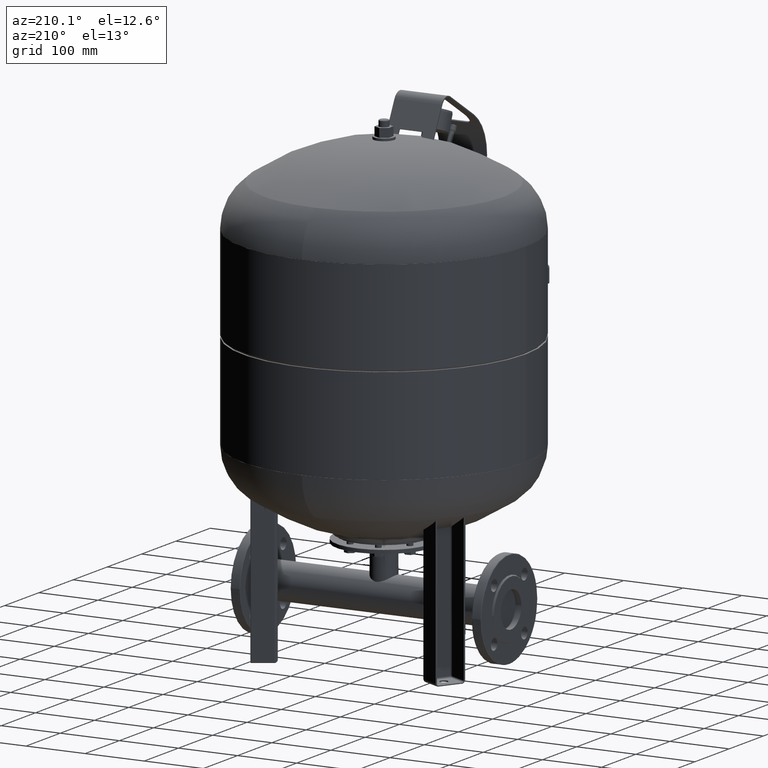
[diagram: clean part render]
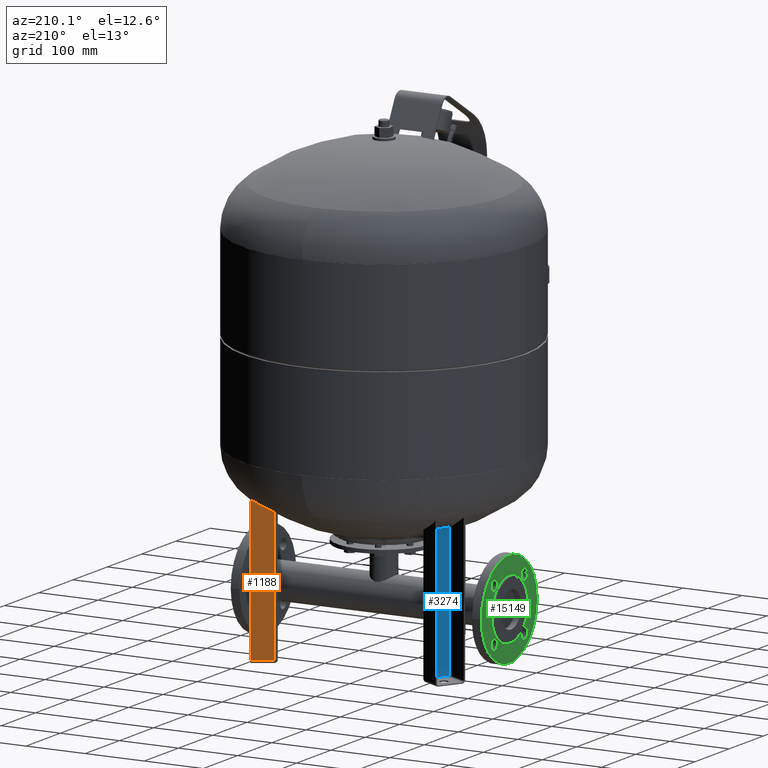
[diagram: same view with three faces highlighted in distinct colors, each labeled with its STEP entity id]
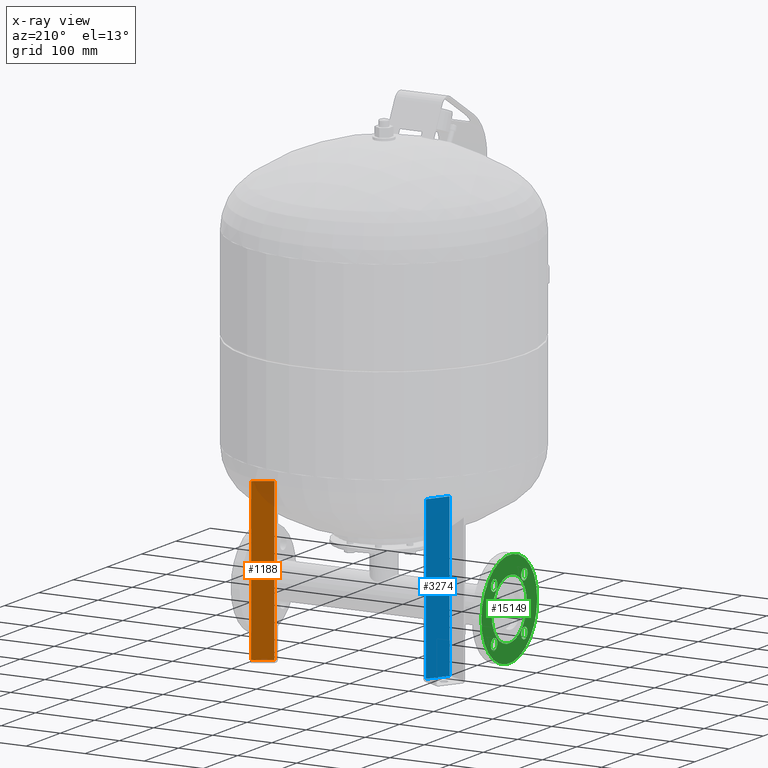
[diagram: x-ray of the same camera — body ghosted, the three highlighted faces saturated]
A machine part, auxiliary view with three faces highlighted in distinct colors.
The next image is the same camera in x-ray (body ghosted, the three faces saturated) — at least one of them is partly hidden behind the body in this view.
Their STEP definitions:

[orange] entity #1188 — the highlighted planar face has unit normal (-0.5, 0.866, 0).
#250=CARTESIAN_POINT('',(155.941941036073360,118.900635094610920,274.0));
#251=VERTEX_POINT('',#250);
#259=CARTESIAN_POINT('',(126.497077307402440,101.900635094610920,274.0));
#260=VERTEX_POINT('',#259);
#261=CARTESIAN_POINT('',(126.497077307402440,101.900635094610920,274.0));
#262=DIRECTION('',(0.866025403784439,0.500000000000000,0.0));
#263=VECTOR('',#262,34.000000000000007);
#264=LINE('',#261,#263);
#265=EDGE_CURVE('',#260,#251,#264,.T.);
#695=CARTESIAN_POINT('',(155.941941036073330,118.900635094610920,5.000000000000004));
#696=VERTEX_POINT('',#695);
#723=CARTESIAN_POINT('',(155.941941036073330,118.900635094610920,5.000000000000004));
#724=DIRECTION('',(0.0,0.0,1.0));
#725=VECTOR('',#724,269.0);
#726=LINE('',#723,#725);
#727=EDGE_CURVE('',#696,#251,#726,.T.);
#923=CARTESIAN_POINT('',(126.497077307402440,101.900635094610920,5.000000000000004));
#924=VERTEX_POINT('',#923);
#932=CARTESIAN_POINT('',(126.497077307402440,101.900635094610920,5.000000000000004));
#933=DIRECTION('',(0.866025403784438,0.500000000000000,0.0));
#934=VECTOR('',#933,33.999999999999986);
#935=LINE('',#932,#934);
#936=EDGE_CURVE('',#924,#696,#935,.T.);
#1058=CARTESIAN_POINT('',(126.497077307402440,101.900635094610920,5.000000000000004));
#1059=DIRECTION('',(0.0,0.0,1.0));
#1060=VECTOR('',#1059,269.0);
#1061=LINE('',#1058,#1060);
#1062=EDGE_CURVE('',#924,#260,#1061,.T.);
#1177=CARTESIAN_POINT('',(122.166950288480240,99.400635094610919,4.592425E-015));
#1178=DIRECTION('',(-0.500000000000000,0.866025403784439,1.836970E-016));
#1179=DIRECTION('',(-0.866025403784439,-0.500000000000000,-2.039447E-032));
#1180=AXIS2_PLACEMENT_3D('',#1177,#1178,#1179);
#1181=PLANE('',#1180);
#1182=ORIENTED_EDGE('',*,*,#727,.F.);
#1183=ORIENTED_EDGE('',*,*,#936,.F.);
#1184=ORIENTED_EDGE('',*,*,#1062,.T.);
#1185=ORIENTED_EDGE('',*,*,#265,.T.);
#1186=EDGE_LOOP('',(#1182,#1183,#1184,#1185));
#1187=FACE_OUTER_BOUND('',#1186,.T.);
#1188=ADVANCED_FACE('',(#1187),#1181,.T.);

[blue] entity #3274 — the highlighted planar face has unit normal (0.866, -0.5, -0).
#2327=CARTESIAN_POINT('',(-126.832013797941230,96.320508075688835,274.0));
#2328=VERTEX_POINT('',#2327);
#2336=CARTESIAN_POINT('',(-146.832013797941220,61.679491924311279,274.0));
#2337=VERTEX_POINT('',#2336);
#2338=CARTESIAN_POINT('',(-146.832013797941220,61.679491924311279,274.0));
#2339=DIRECTION('',(0.500000000000000,0.866025403784439,0.0));
#2340=VECTOR('',#2339,40.0);
#2341=LINE('',#2338,#2340);
#2342=EDGE_CURVE('',#2337,#2328,#2341,.T.);
#2879=CARTESIAN_POINT('',(-146.832013797941220,61.679491924311286,4.500000000000004));
#2880=VERTEX_POINT('',#2879);
#2888=CARTESIAN_POINT('',(-126.832013797941230,96.320508075688835,4.499999999999996));
#2889=VERTEX_POINT('',#2888);
#2890=CARTESIAN_POINT('',(-146.832013797941220,61.679491924311286,4.500000000000004));
#2891=DIRECTION('',(0.500000000000000,0.866025403784439,-1.776357E-016));
#2892=VECTOR('',#2891,39.999999999999993);
#2893=LINE('',#2890,#2892);
#2894=EDGE_CURVE('',#2880,#2889,#2893,.T.);
#3247=CARTESIAN_POINT('',(-126.832013797941230,96.320508075688835,4.499999999999996));
#3248=DIRECTION('',(0.0,0.0,1.0));
#3249=VECTOR('',#3248,269.500000000000000);
#3250=LINE('',#3247,#3249);
#3251=EDGE_CURVE('',#2889,#2328,#3250,.T.);
#3258=CARTESIAN_POINT('',(-125.582013797941230,98.485571585149927,1.999999999999996));
#3259=DIRECTION('',(0.866025403784439,-0.500000000000000,-5.438524E-032));
#3260=DIRECTION('',(0.500000000000000,0.866025403784439,-1.836970E-016));
#3261=AXIS2_PLACEMENT_3D('',#3258,#3259,#3260);
#3262=PLANE('',#3261);
#3263=ORIENTED_EDGE('',*,*,#2894,.F.);
#3264=CARTESIAN_POINT('',(-146.832013797941220,61.679491924311279,274.0));
#3265=DIRECTION('',(0.0,0.0,-1.0));
#3266=VECTOR('',#3265,269.500000000000000);
#3267=LINE('',#3264,#3266);
#3268=EDGE_CURVE('',#2337,#2880,#3267,.T.);
#3269=ORIENTED_EDGE('',*,*,#3268,.F.);
#3270=ORIENTED_EDGE('',*,*,#2342,.T.);
#3271=ORIENTED_EDGE('',*,*,#3251,.F.);
#3272=EDGE_LOOP('',(#3263,#3269,#3270,#3271));
#3273=FACE_OUTER_BOUND('',#3272,.T.);
#3274=ADVANCED_FACE('',(#3273),#3262,.F.);

[green] entity #15149 — the highlighted face is a freeform B-spline surface patch.
#14268=CARTESIAN_POINT('',(-212.0,-51.232050807568882,100.0));
#14269=VERTEX_POINT('',#14268);
#14278=CARTESIAN_POINT('',(-212.0,51.232050807568882,100.0));
#14279=VERTEX_POINT('',#14278);
#14280=CARTESIAN_POINT('',(-212.0,-5.510729E-016,100.0));
#14281=DIRECTION('',(1.0,0.0,0.0));
#14282=DIRECTION('',(0.0,-1.0,0.0));
#14283=AXIS2_PLACEMENT_3D('',#14280,#14281,#14282);
#14284=CIRCLE('',#14283,51.232050807568882);
#14285=EDGE_CURVE('',#14279,#14269,#14284,.T.);
#14396=CARTESIAN_POINT('',(-212.000000000000030,-53.694173824159122,144.194173824159320));
#14397=VERTEX_POINT('',#14396);
#14413=CARTESIAN_POINT('',(-212.0,-34.694173824159122,144.194173824159380));
#14414=VERTEX_POINT('',#14413);
#14421=CARTESIAN_POINT('',(-212.000000000000030,-44.194173824159122,144.194173824159320));
#14422=DIRECTION('',(-1.0,0.0,0.0));
#14423=DIRECTION('',(0.0,-1.0,0.0));
#14424=AXIS2_PLACEMENT_3D('',#14421,#14422,#14423);
#14425=CIRCLE('',#14424,9.500000000000000);
#14426=EDGE_CURVE('',#14414,#14397,#14425,.T.);
#14459=CARTESIAN_POINT('',(-212.0,-53.694173824159272,55.805826175840828));
#14460=VERTEX_POINT('',#14459);
#14476=CARTESIAN_POINT('',(-212.0,-34.694173824159272,55.805826175840892));
#14477=VERTEX_POINT('',#14476);
#14484=CARTESIAN_POINT('',(-212.0,-44.194173824159272,55.805826175840828));
#14485=DIRECTION('',(-1.0,0.0,0.0));
#14486=DIRECTION('',(0.0,-1.0,0.0));
#14487=AXIS2_PLACEMENT_3D('',#14484,#14485,#14486);
#14488=CIRCLE('',#14487,9.500000000000000);
#14489=EDGE_CURVE('',#14477,#14460,#14488,.T.);
#14522=CARTESIAN_POINT('',(-211.999999999999970,34.694173824159158,55.805826175840714));
#14523=VERTEX_POINT('',#14522);
#14539=CARTESIAN_POINT('',(-211.999999999999970,53.694173824159158,55.805826175840778));
#14540=VERTEX_POINT('',#14539);
#14547=CARTESIAN_POINT('',(-211.999999999999970,44.194173824159158,55.805826175840714));
#14548=DIRECTION('',(-1.0,0.0,0.0));
#14549=DIRECTION('',(0.0,-1.0,0.0));
#14550=AXIS2_PLACEMENT_3D('',#14547,#14548,#14549);
#14551=CIRCLE('',#14550,9.500000000000000);
#14552=EDGE_CURVE('',#14540,#14523,#14551,.T.);
#14585=CARTESIAN_POINT('',(-212.0,34.694173824159300,144.194173824159150));
#14586=VERTEX_POINT('',#14585);
#14602=CARTESIAN_POINT('',(-212.0,53.694173824159300,144.194173824159210));
#14603=VERTEX_POINT('',#14602);
#14610=CARTESIAN_POINT('',(-212.0,44.194173824159300,144.194173824159150));
#14611=DIRECTION('',(-1.0,0.0,0.0));
#14612=DIRECTION('',(0.0,-1.0,0.0));
#14613=AXIS2_PLACEMENT_3D('',#14610,#14611,#14612);
#14614=CIRCLE('',#14613,9.500000000000000);
#14615=EDGE_CURVE('',#14603,#14586,#14614,.T.);
#14675=CARTESIAN_POINT('',(-211.999999999999970,81.500000000000000,100.0));
#14676=VERTEX_POINT('',#14675);
#14693=CARTESIAN_POINT('',(-212.000000000000030,-81.500000000000000,100.0));
#14694=VERTEX_POINT('',#14693);
#14702=CARTESIAN_POINT('',(-212.0,-5.510729E-016,100.0));
#14703=DIRECTION('',(-1.0,0.0,0.0));
#14704=DIRECTION('',(0.0,1.0,0.0));
#14705=AXIS2_PLACEMENT_3D('',#14702,#14703,#14704);
#14706=CIRCLE('',#14705,81.500000000000000);
#14707=EDGE_CURVE('',#14676,#14694,#14706,.T.);
#15078=CARTESIAN_POINT('',(-212.0,-5.510729E-016,100.0));
#15079=DIRECTION('',(-1.0,0.0,0.0));
#15080=DIRECTION('',(0.0,1.0,0.0));
#15081=AXIS2_PLACEMENT_3D('',#15078,#15079,#15080);
#15082=CIRCLE('',#15081,81.500000000000000);
#15083=EDGE_CURVE('',#14694,#14676,#15082,.T.);
#15090=CARTESIAN_POINT('',(-211.999999999999970,81.500000000000000,18.500000000000000));
#15091=CARTESIAN_POINT('',(-212.0,-81.500000000000000,18.500000000000000));
#15092=CARTESIAN_POINT('',(-212.0,81.500000000000000,181.500000000000000));
#15093=CARTESIAN_POINT('',(-212.000000000000030,-81.500000000000000,181.500000000000000));
#15094=B_SPLINE_SURFACE_WITH_KNOTS('',1,1,((#15090,#15092),(#15091,#15093)),.UNSPECIFIED.,.F.,.F.,.U.,(2,2),(2,2),(0.0,163.0),(0.0,163.0),.UNSPECIFIED.);
#15095=ORIENTED_EDGE('',*,*,#15083,.T.);
#15096=ORIENTED_EDGE('',*,*,#14707,.T.);
#15097=EDGE_LOOP('',(#15095,#15096));
#15098=FACE_OUTER_BOUND('',#15097,.T.);
#15099=CARTESIAN_POINT('',(-212.0,-5.510729E-016,100.0));
#15100=DIRECTION('',(1.0,0.0,0.0));
#15101=DIRECTION('',(0.0,-1.0,0.0));
#15102=AXIS2_PLACEMENT_3D('',#15099,#15100,#15101);
#15103=CIRCLE('',#15102,51.232050807568882);
#15104=EDGE_CURVE('',#14269,#14279,#15103,.T.);
#15105=ORIENTED_EDGE('',*,*,#15104,.T.);
#15106=ORIENTED_EDGE('',*,*,#14285,.T.);
#15107=EDGE_LOOP('',(#15105,#15106));
#15108=FACE_BOUND('',#15107,.T.);
#15109=ORIENTED_EDGE('',*,*,#14426,.F.);
#15110=CARTESIAN_POINT('',(-212.000000000000030,-44.194173824159122,144.194173824159320));
#15111=DIRECTION('',(-1.0,0.0,0.0));
#15112=DIRECTION('',(0.0,-1.0,0.0));
#15113=AXIS2_PLACEMENT_3D('',#15110,#15111,#15112);
#15114=CIRCLE('',#15113,9.500000000000000);
#15115=EDGE_CURVE('',#14397,#14414,#15114,.T.);
#15116=ORIENTED_EDGE('',*,*,#15115,.F.);
#15117=EDGE_LOOP('',(#15109,#15116));
#15118=FACE_BOUND('',#15117,.T.);
#15119=ORIENTED_EDGE('',*,*,#14489,.F.);
#15120=CARTESIAN_POINT('',(-212.0,-44.194173824159272,55.805826175840828));
#15121=DIRECTION('',(-1.0,0.0,0.0));
#15122=DIRECTION('',(0.0,-1.0,0.0));
#15123=AXIS2_PLACEMENT_3D('',#15120,#15121,#15122);
#15124=CIRCLE('',#15123,9.500000000000000);
#15125=EDGE_CURVE('',#14460,#14477,#15124,.T.);
#15126=ORIENTED_EDGE('',*,*,#15125,.F.);
#15127=EDGE_LOOP('',(#15119,#15126));
#15128=FACE_BOUND('',#15127,.T.);
#15129=ORIENTED_EDGE('',*,*,#14552,.F.);
#15130=CARTESIAN_POINT('',(-211.999999999999970,44.194173824159158,55.805826175840714));
#15131=DIRECTION('',(-1.0,0.0,0.0));
#15132=DIRECTION('',(0.0,-1.0,0.0));
#15133=AXIS2_PLACEMENT_3D('',#15130,#15131,#15132);
#15134=CIRCLE('',#15133,9.500000000000000);
#15135=EDGE_CURVE('',#14523,#14540,#15134,.T.);
#15136=ORIENTED_EDGE('',*,*,#15135,.F.);
#15137=EDGE_LOOP('',(#15129,#15136));
#15138=FACE_BOUND('',#15137,.T.);
#15139=ORIENTED_EDGE('',*,*,#14615,.F.);
#15140=CARTESIAN_POINT('',(-212.0,44.194173824159300,144.194173824159150));
#15141=DIRECTION('',(-1.0,0.0,0.0));
#15142=DIRECTION('',(0.0,-1.0,0.0));
#15143=AXIS2_PLACEMENT_3D('',#15140,#15141,#15142);
#15144=CIRCLE('',#15143,9.500000000000000);
#15145=EDGE_CURVE('',#14586,#14603,#15144,.T.);
#15146=ORIENTED_EDGE('',*,*,#15145,.F.);
#15147=EDGE_LOOP('',(#15139,#15146));
#15148=FACE_BOUND('',#15147,.T.);
#15149=ADVANCED_FACE('',(#15098,#15108,#15118,#15128,#15138,#15148),#15094,.T.);